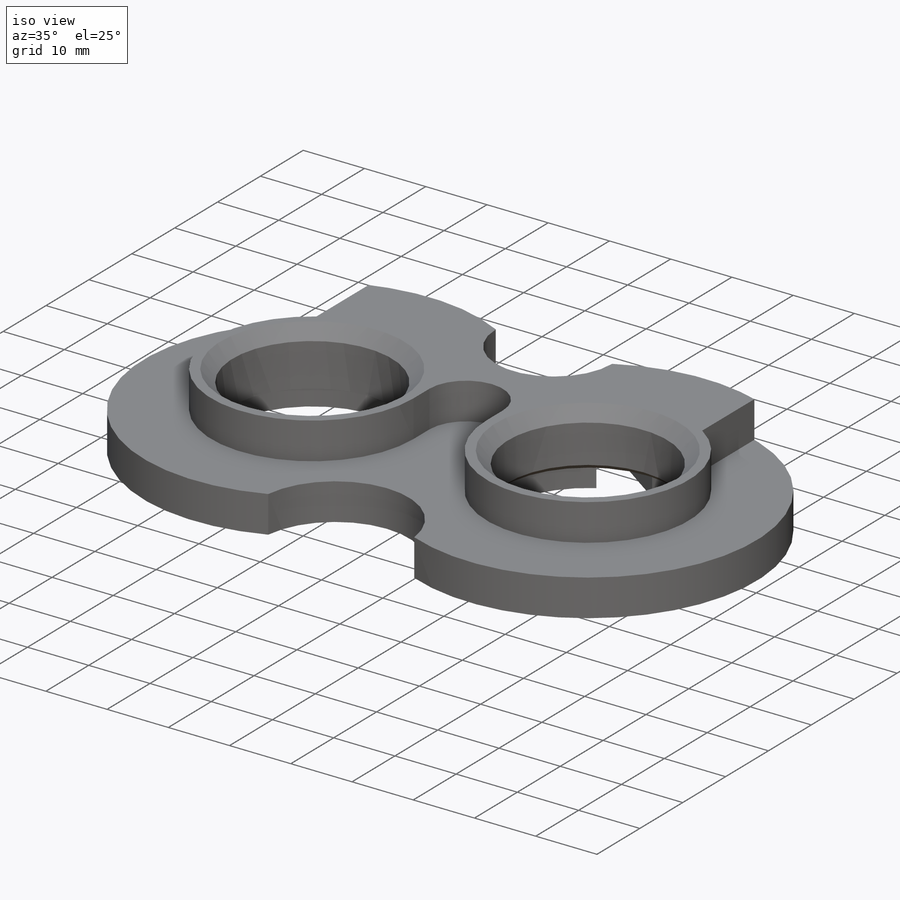
[diagram: iso view]
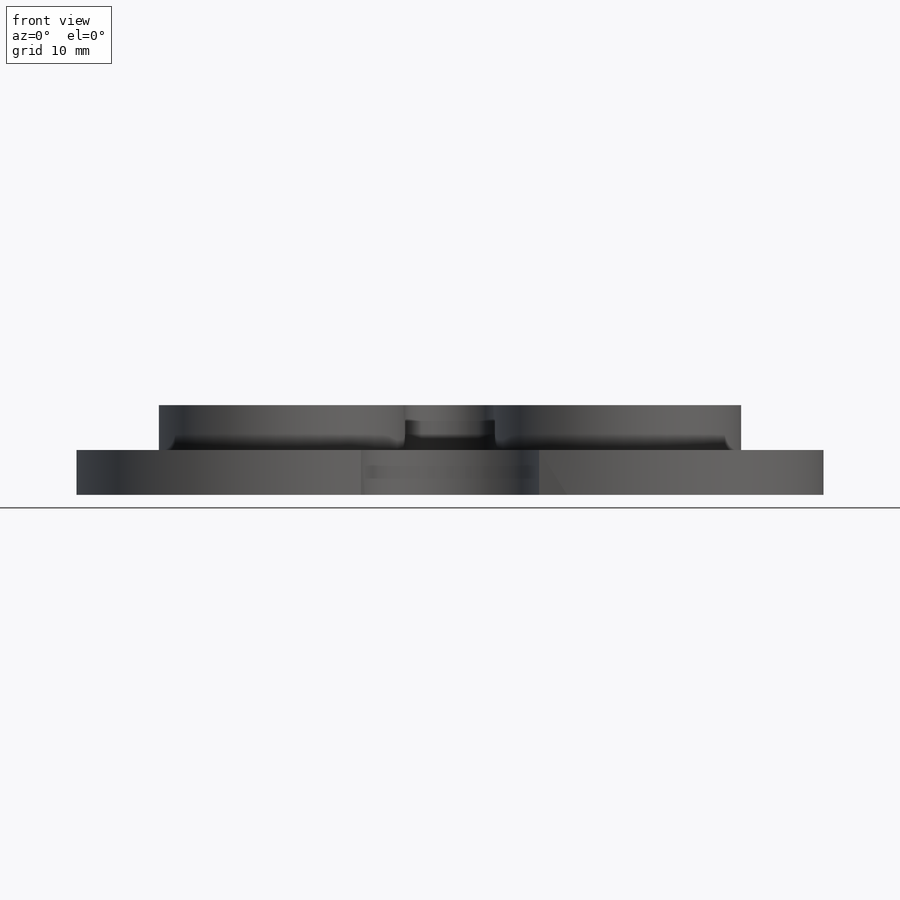
[diagram: front view]
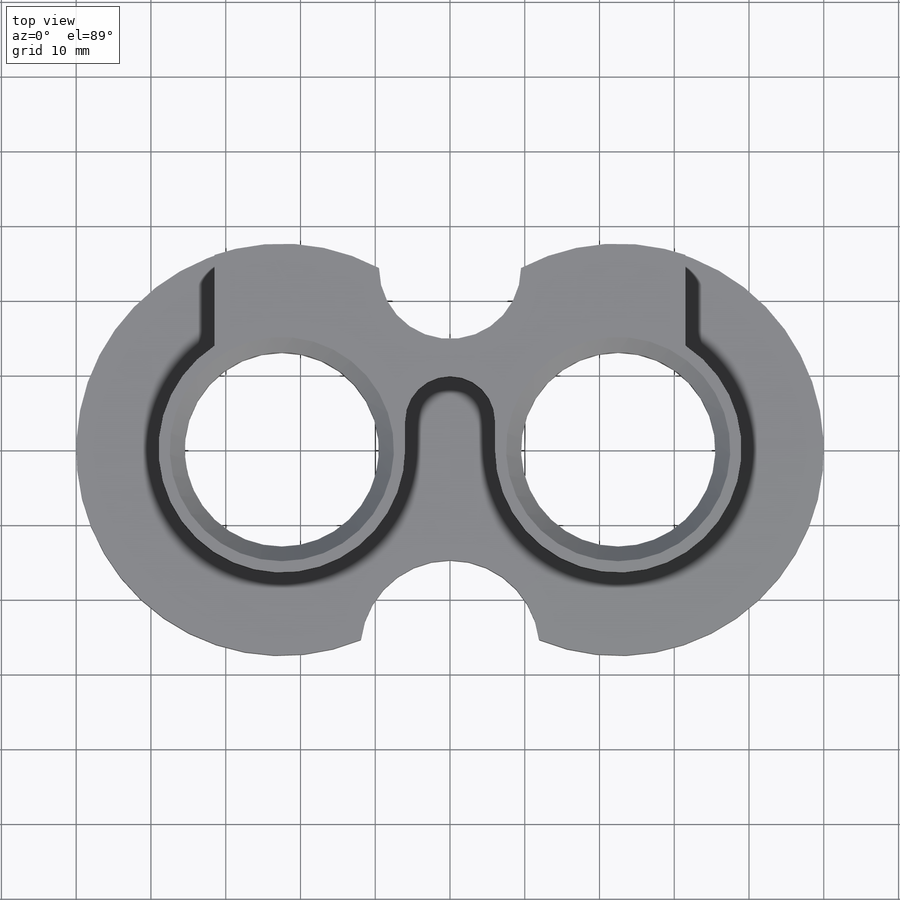
[diagram: top view]
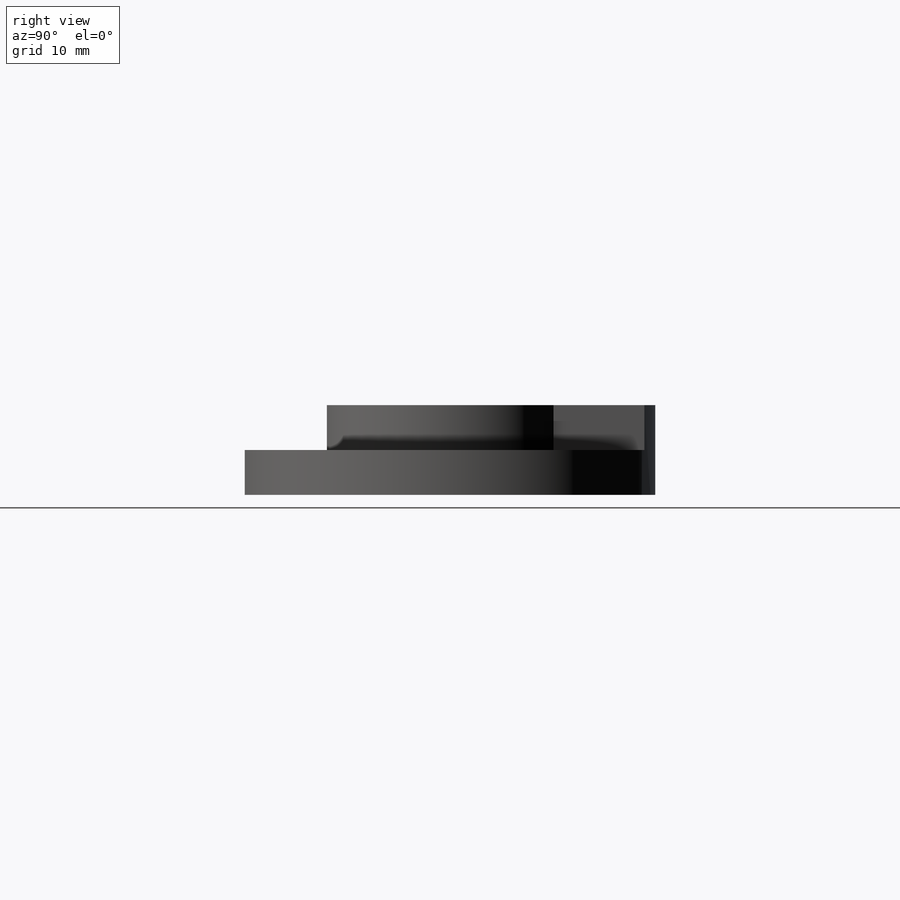
[diagram: right view]
SOLIDWORKS PART (.sldprt)
format: sldprt  version: not decoded by parser v0  size: 279,040 bytes
history: native  units: mm
features: sketch x6, cut_extrude x5, plane x3, chamfer x2, material x1, extrude x1 (+8 scaffold rows collapsed)
feature tree (26):
  scaffold x8  (default folders/planes/origin — collapsed)
  material  "АЛ8Т4 ГОСТ 1583-93"
  plane  "Спереди"
  plane  "Сверху"
  plane  "Справа"
  sketch  "Эскиз1"  dims[c1.D1=55.0mm c1.D2=55.0mm c1.D4=19.0mm c1.D5=24.0mm c2.D1=27.5mm c2.D3=100.0mm c2.D6=29.5mm c2.D7=14.75mm]
  extrude  "Бобышка-Вытянуть1"  Depth=12mm
  sketch  "Эскиз2"  dims[D1=19.0mm D2=24.0mm D3=29.5mm D4=14.75mm]
  cut_extrude  "Вырез-Вытянуть1"  [1 undecoded]
  sketch  "Эскиз3"  dims[D1=33.0mm D2=33.0mm D3=5.0mm D4=31.5mm D5=31.5mm D6=70.0mm D7=40.0mm D8=40.0mm D9=30.0mm]
  cut_extrude  "Вырез-Вытянуть2"  Depth=6mm
  sketch  "Эскиз4"  dims[D1=26.0mm D2=26.0mm]
  cut_extrude  "Вырез-Вытянуть3"  [1 undecoded]
  chamfer  "Фаска1"  Distance=2mm Angle=45deg
  sketch  "Эскиз5"  dims[c1.D1=6.0mm c1.D2=6.0mm c1.D3=~14.041372mm c2.D3=35.0deg c2.D4=~19.051649mm c3.D4=35.0deg c3.D5=25.0mm c3.D6=25.0mm c3.D7=8.0mm c3.D8=11.0mm c3.D9=30.0mm]
  cut_extrude  "Вырез-Вытянуть4"  Depth=3mm
  sketch  "Эскиз7"  dims[D1=27.5mm D2=27.5mm]
  cut_extrude  "Вырез-Вытянуть5"  Depth=3mm
  chamfer  "Фаска2"  Distance=0.75mm Angle=45deg
decode coverage: 12 of 14 modeling features carry decoded parameters
note: ~ marks probable driven/reference dimensions
note: 2 parameter values undecoded
note: suppression state not decoded; provenance and decode notes live in map.json
